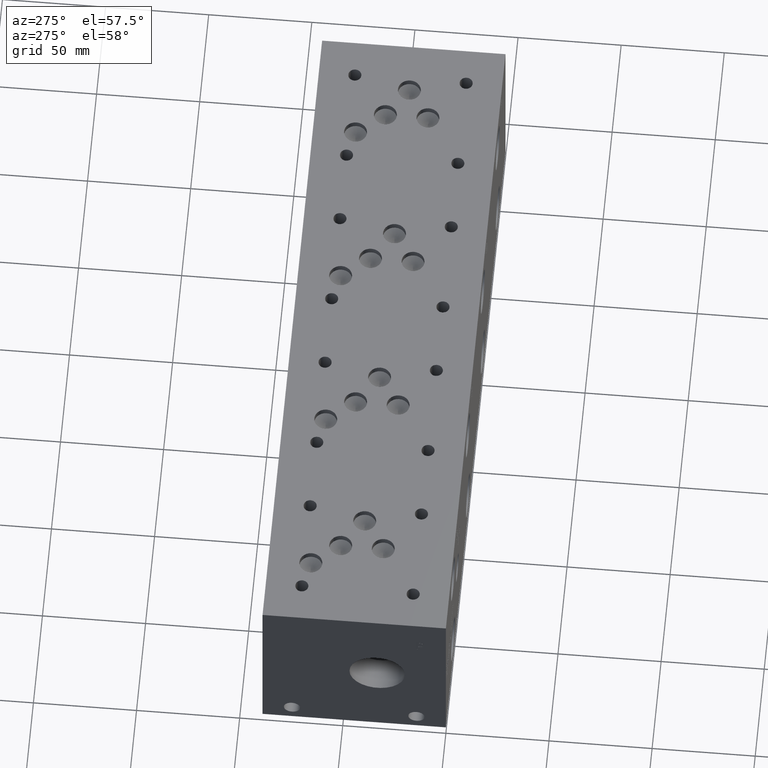
[diagram: clean part render]
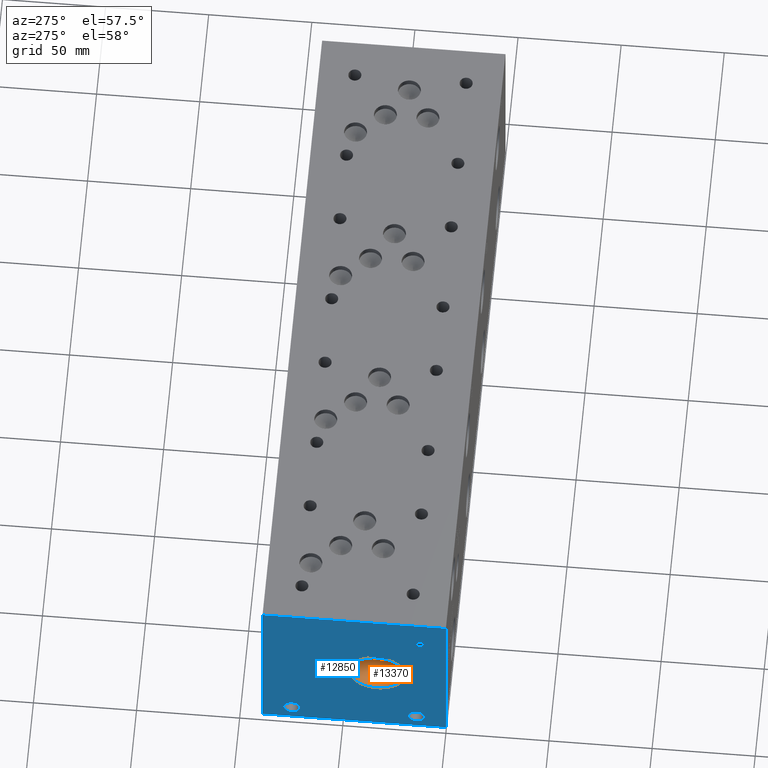
[diagram: same view with the hole feature highlighted: cylindrical wall and planar end face, labeled with their STEP entity ids]
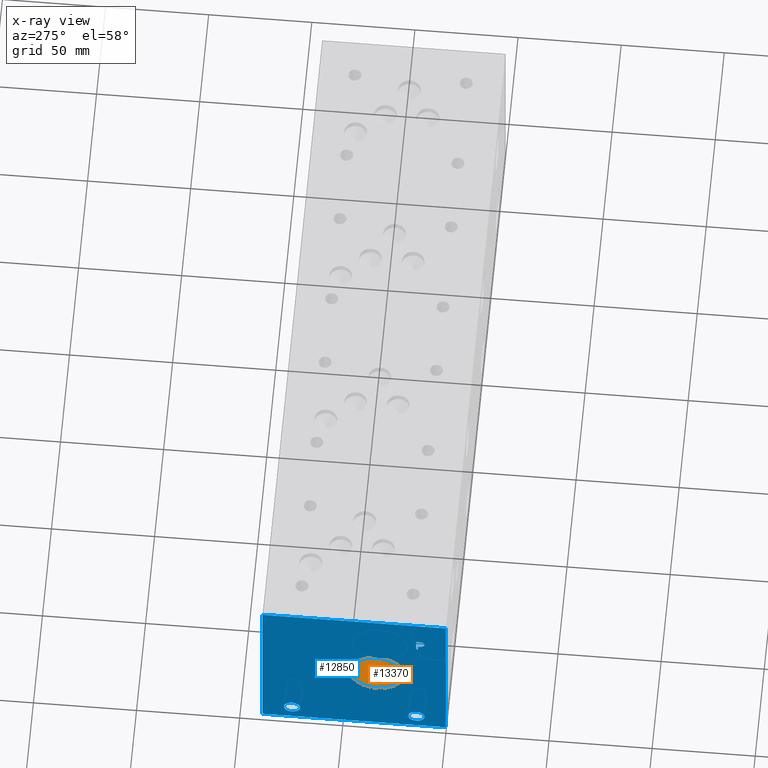
[diagram: x-ray of the same camera — body ghosted, the hole faces saturated]
A machine part, auxiliary view. The highlighted faces form one hole feature of diameter 26.924 mm: the cylindrical wall (entity #13370, orange) and its adjacent planar end face (entity #12850, blue) — they share a circular edge in the B-rep.
The next image is the same camera in x-ray (body ghosted, the hole faces saturated) — the bore reads through the body.
Wall:
#20=CYLINDRICAL_SURFACE('',#13954,13.462);
#143=CIRCLE('',#13555,13.462);
#144=CIRCLE('',#13556,13.462);
#186=CIRCLE('',#13951,13.462);
#187=CIRCLE('',#13952,13.462);
#1618=FACE_OUTER_BOUND('',#2379,.T.);
#2379=EDGE_LOOP('',(#11157,#11158,#11159,#11160,#11161,#11162));
#3699=LINE('',#22503,#4928);
#4928=VECTOR('',#16290,13.462);
#5104=VERTEX_POINT('',#17434);
#5105=VERTEX_POINT('',#17435);
#6065=VERTEX_POINT('',#22496);
#6066=VERTEX_POINT('',#22497);
#6424=EDGE_CURVE('',#5104,#5105,#143,.T.);
#6425=EDGE_CURVE('',#5105,#5104,#144,.T.);
#7848=EDGE_CURVE('',#6065,#6066,#186,.T.);
#7849=EDGE_CURVE('',#6066,#6065,#187,.T.);
#7851=EDGE_CURVE('',#5105,#6066,#3699,.T.);
#11157=ORIENTED_EDGE('',*,*,#6424,.F.);
#11158=ORIENTED_EDGE('',*,*,#6425,.F.);
#11159=ORIENTED_EDGE('',*,*,#7851,.T.);
#11160=ORIENTED_EDGE('',*,*,#7848,.F.);
#11161=ORIENTED_EDGE('',*,*,#7849,.F.);
#11162=ORIENTED_EDGE('',*,*,#7851,.F.);
#13370=ADVANCED_FACE('',(#1618),#20,.F.);
#13555=AXIS2_PLACEMENT_3D('',#17436,#14441,#14442);
#13556=AXIS2_PLACEMENT_3D('',#17437,#14443,#14444);
#13951=AXIS2_PLACEMENT_3D('',#22498,#16282,#16283);
#13952=AXIS2_PLACEMENT_3D('',#22499,#16284,#16285);
#13954=AXIS2_PLACEMENT_3D('',#22502,#16288,#16289);
#14441=DIRECTION('center_axis',(1.,0.,0.));
#14442=DIRECTION('ref_axis',(0.,1.,0.));
#14443=DIRECTION('center_axis',(1.,0.,0.));
#14444=DIRECTION('ref_axis',(0.,1.,0.));
#16282=DIRECTION('center_axis',(-1.,0.,0.));
#16283=DIRECTION('ref_axis',(0.,1.,0.));
#16284=DIRECTION('center_axis',(-1.,0.,0.));
#16285=DIRECTION('ref_axis',(0.,1.,0.));
#16288=DIRECTION('center_axis',(-1.,0.,0.));
#16289=DIRECTION('ref_axis',(0.,1.,0.));
#16290=DIRECTION('',(1.,0.,0.));
#17434=CARTESIAN_POINT('',(0.,46.7868,44.45));
#17435=CARTESIAN_POINT('',(1.11022302462516E-15,19.8628,44.45));
#17436=CARTESIAN_POINT('Origin',(0.,33.3248,44.45));
#17437=CARTESIAN_POINT('Origin',(0.,33.3248,44.45));
#22496=CARTESIAN_POINT('',(15.8496,46.7868,44.45));
#22497=CARTESIAN_POINT('',(15.8496,19.8628,44.45));
#22498=CARTESIAN_POINT('Origin',(15.8496,33.3248,44.45));
#22499=CARTESIAN_POINT('Origin',(15.8496,33.3248,44.45));
#22502=CARTESIAN_POINT('Origin',(7.9248,33.3248,44.45));
#22503=CARTESIAN_POINT('',(7.9248,19.8628,44.45));
End face:
#139=CIRCLE('',#13551,3.9624);
#140=CIRCLE('',#13552,3.9624);
#141=CIRCLE('',#13553,3.9624);
#142=CIRCLE('',#13554,3.9624);
#143=CIRCLE('',#13555,13.462);
#144=CIRCLE('',#13556,13.462);
#421=FACE_BOUND('',#1794,.T.);
#422=FACE_BOUND('',#1795,.T.);
#423=FACE_BOUND('',#1796,.T.);
#424=FACE_BOUND('',#1797,.T.);
#558=B_SPLINE_CURVE_WITH_KNOTS('',2,(#17320,#17321,#17322,#17323),
 .UNSPECIFIED.,.F.,.F.,(3,1,3),(0.,1.,2.),.UNSPECIFIED.);
#560=B_SPLINE_CURVE_WITH_KNOTS('',2,(#17341,#17342,#17343,#17344),
 .UNSPECIFIED.,.F.,.F.,(3,1,3),(0.,1.,2.),.UNSPECIFIED.);
#562=B_SPLINE_CURVE_WITH_KNOTS('',2,(#17390,#17391,#17392,#17393),
 .UNSPECIFIED.,.F.,.F.,(3,1,3),(0.,1.,2.),.UNSPECIFIED.);
#564=B_SPLINE_CURVE_WITH_KNOTS('',2,(#17408,#17409,#17410,#17411),
 .UNSPECIFIED.,.F.,.F.,(3,1,3),(0.,1.,2.),.UNSPECIFIED.);
#1098=FACE_OUTER_BOUND('',#1793,.T.);
#1793=EDGE_LOOP('',(#8322,#8323,#8324,#8325));
#1794=EDGE_LOOP('',(#8326,#8327));
#1795=EDGE_LOOP('',(#8328,#8329));
#1796=EDGE_LOOP('',(#8330,#8331));
#1797=EDGE_LOOP('',(#8332,#8333,#8334,#8335,#8336,#8337,#8338,#8339,#8340));
#2630=LINE('',#17353,#3859);
#2633=LINE('',#17359,#3862);
#2636=LINE('',#17365,#3865);
#2639=LINE('',#17371,#3868);
#2642=LINE('',#17377,#3871);
#2646=LINE('',#17420,#3875);
#2647=LINE('',#17422,#3876);
#2648=LINE('',#17424,#3877);
#2649=LINE('',#17425,#3878);
#3859=VECTOR('',#14401,10.);
#3862=VECTOR('',#14406,10.);
#3865=VECTOR('',#14411,10.);
#3868=VECTOR('',#14416,10.);
#3871=VECTOR('',#14421,10.);
#3875=VECTOR('',#14429,10.);
#3876=VECTOR('',#14430,10.);
#3877=VECTOR('',#14431,10.);
#3878=VECTOR('',#14432,10.);
#5078=VERTEX_POINT('',#17318);
#5079=VERTEX_POINT('',#17319);
#5082=VERTEX_POINT('',#17340);
#5084=VERTEX_POINT('',#17352);
#5086=VERTEX_POINT('',#17358);
#5088=VERTEX_POINT('',#17364);
#5090=VERTEX_POINT('',#17370);
#5092=VERTEX_POINT('',#17376);
#5094=VERTEX_POINT('',#17389);
#5096=VERTEX_POINT('',#17418);
#5097=VERTEX_POINT('',#17419);
#5098=VERTEX_POINT('',#17421);
#5099=VERTEX_POINT('',#17423);
#5100=VERTEX_POINT('',#17426);
#5101=VERTEX_POINT('',#17427);
#5102=VERTEX_POINT('',#17430);
#5103=VERTEX_POINT('',#17431);
#5104=VERTEX_POINT('',#17434);
#5105=VERTEX_POINT('',#17435);
#6389=EDGE_CURVE('',#5078,#5079,#558,.T.);
#6393=EDGE_CURVE('',#5082,#5078,#560,.T.);
#6396=EDGE_CURVE('',#5084,#5082,#2630,.T.);
#6399=EDGE_CURVE('',#5086,#5084,#2633,.T.);
#6402=EDGE_CURVE('',#5088,#5086,#2636,.T.);
#6405=EDGE_CURVE('',#5090,#5088,#2639,.T.);
#6408=EDGE_CURVE('',#5092,#5090,#2642,.T.);
#6411=EDGE_CURVE('',#5094,#5092,#562,.T.);
#6414=EDGE_CURVE('',#5079,#5094,#564,.T.);
#6416=EDGE_CURVE('',#5096,#5097,#2646,.T.);
#6417=EDGE_CURVE('',#5097,#5098,#2647,.T.);
#6418=EDGE_CURVE('',#5099,#5098,#2648,.T.);
#6419=EDGE_CURVE('',#5096,#5099,#2649,.T.);
#6420=EDGE_CURVE('',#5100,#5101,#139,.T.);
#6421=EDGE_CURVE('',#5101,#5100,#140,.T.);
#6422=EDGE_CURVE('',#5102,#5103,#141,.T.);
#6423=EDGE_CURVE('',#5103,#5102,#142,.T.);
#6424=EDGE_CURVE('',#5104,#5105,#143,.T.);
#6425=EDGE_CURVE('',#5105,#5104,#144,.T.);
#8322=ORIENTED_EDGE('',*,*,#6416,.T.);
#8323=ORIENTED_EDGE('',*,*,#6417,.T.);
#8324=ORIENTED_EDGE('',*,*,#6418,.F.);
#8325=ORIENTED_EDGE('',*,*,#6419,.F.);
#8326=ORIENTED_EDGE('',*,*,#6420,.T.);
#8327=ORIENTED_EDGE('',*,*,#6421,.T.);
#8328=ORIENTED_EDGE('',*,*,#6422,.T.);
#8329=ORIENTED_EDGE('',*,*,#6423,.T.);
#8330=ORIENTED_EDGE('',*,*,#6424,.T.);
#8331=ORIENTED_EDGE('',*,*,#6425,.T.);
#8332=ORIENTED_EDGE('',*,*,#6389,.T.);
#8333=ORIENTED_EDGE('',*,*,#6414,.T.);
#8334=ORIENTED_EDGE('',*,*,#6411,.T.);
#8335=ORIENTED_EDGE('',*,*,#6408,.T.);
#8336=ORIENTED_EDGE('',*,*,#6405,.T.);
#8337=ORIENTED_EDGE('',*,*,#6402,.T.);
#8338=ORIENTED_EDGE('',*,*,#6399,.T.);
#8339=ORIENTED_EDGE('',*,*,#6396,.T.);
#8340=ORIENTED_EDGE('',*,*,#6393,.T.);
#11936=PLANE('',#13550);
#12850=ADVANCED_FACE('',(#1098,#421,#422,#423,#424),#11936,.T.);
#13550=AXIS2_PLACEMENT_3D('',#17417,#14427,#14428);
#13551=AXIS2_PLACEMENT_3D('',#17428,#14433,#14434);
#13552=AXIS2_PLACEMENT_3D('',#17429,#14435,#14436);
#13553=AXIS2_PLACEMENT_3D('',#17432,#14437,#14438);
#13554=AXIS2_PLACEMENT_3D('',#17433,#14439,#14440);
#13555=AXIS2_PLACEMENT_3D('',#17436,#14441,#14442);
#13556=AXIS2_PLACEMENT_3D('',#17437,#14443,#14444);
#14401=DIRECTION('',(0.,-1.,-5.56775304226775E-15));
#14406=DIRECTION('',(0.,-3.14708893596576E-15,1.));
#14411=DIRECTION('',(0.,1.,0.));
#14416=DIRECTION('',(0.,2.81413604853751E-15,-1.));
#14421=DIRECTION('',(0.,1.,0.));
#14427=DIRECTION('center_axis',(-1.,0.,0.));
#14428=DIRECTION('ref_axis',(0.,-1.,0.));
#14429=DIRECTION('',(0.,-1.,0.));
#14430=DIRECTION('',(0.,0.,1.));
#14431=DIRECTION('',(0.,-1.,0.));
#14432=DIRECTION('',(0.,0.,1.));
#14433=DIRECTION('center_axis',(1.,0.,0.));
#14434=DIRECTION('ref_axis',(0.,1.,0.));
#14435=DIRECTION('center_axis',(1.,0.,0.));
#14436=DIRECTION('ref_axis',(0.,1.,0.));
#14437=DIRECTION('center_axis',(1.,0.,0.));
#14438=DIRECTION('ref_axis',(0.,1.,0.));
#14439=DIRECTION('center_axis',(1.,0.,0.));
#14440=DIRECTION('ref_axis',(0.,1.,0.));
#14441=DIRECTION('center_axis',(1.,0.,0.));
#14442=DIRECTION('ref_axis',(0.,1.,0.));
#14443=DIRECTION('center_axis',(1.,0.,0.));
#14444=DIRECTION('ref_axis',(0.,1.,0.));
#17318=CARTESIAN_POINT('',(0.,11.1806827976406,74.2162681439707));
#17319=CARTESIAN_POINT('',(0.,10.424240345468,72.6982373726039));
#17320=CARTESIAN_POINT('Ctrl Pts',(0.,11.1806827976406,74.2162681439707));
#17321=CARTESIAN_POINT('Ctrl Pts',(0.,10.8256179731514,73.9744123939563));
#17322=CARTESIAN_POINT('Ctrl Pts',(0.,10.424240345468,73.2282616758269));
#17323=CARTESIAN_POINT('Ctrl Pts',(0.,10.424240345468,72.6982373726039));
#17340=CARTESIAN_POINT('',(0.,12.8427978456117,74.6124999046325));
#17341=CARTESIAN_POINT('Ctrl Pts',(0.,12.8427978456117,74.6124999046325));
#17342=CARTESIAN_POINT('Ctrl Pts',(0.,12.2767524732376,74.6124999046325));
#17343=CARTESIAN_POINT('Ctrl Pts',(0.,11.4842889519139,74.4272486918556));
#17344=CARTESIAN_POINT('Ctrl Pts',(0.,11.1806827976406,74.2162681439707));
#17352=CARTESIAN_POINT('',(0.,14.4380166223022,74.6124999046326));
#17353=CARTESIAN_POINT('',(0.,51.6690083111509,74.6124999046328));
#17358=CARTESIAN_POINT('',(0.,14.4380166223022,68.2625));
#17359=CARTESIAN_POINT('',(0.,14.4380166223023,34.1312499999999));
#17364=CARTESIAN_POINT('',(0.,13.5940944307627,68.2625));
#17365=CARTESIAN_POINT('',(0.,51.2470472153814,68.2625));
#17370=CARTESIAN_POINT('',(0.,13.5940944307627,70.6295988299278));
#17371=CARTESIAN_POINT('',(0.,13.5940944307628,35.3147994149638));
#17376=CARTESIAN_POINT('',(0.,12.8788189147628,70.6295988299278));
#17377=CARTESIAN_POINT('',(0.,50.8894094573814,70.6295988299278));
#17389=CARTESIAN_POINT('',(0.,10.9799939837989,71.2882698086904));
#17390=CARTESIAN_POINT('Ctrl Pts',(0.,10.9799939837989,71.2882698086904));
#17391=CARTESIAN_POINT('Ctrl Pts',(0.,11.3093294731802,70.9640801863307));
#17392=CARTESIAN_POINT('Ctrl Pts',(0.,12.1995644679139,70.6295988299278));
#17393=CARTESIAN_POINT('Ctrl Pts',(0.,12.8788189147628,70.6295988299278));
#17408=CARTESIAN_POINT('Ctrl Pts',(0.,10.424240345468,72.6982373726039));
#17409=CARTESIAN_POINT('Ctrl Pts',(0.,10.424240345468,72.2865680108773));
#17410=CARTESIAN_POINT('Ctrl Pts',(0.,10.7175547656982,71.5455631597695));
#17411=CARTESIAN_POINT('Ctrl Pts',(0.,10.9799939837989,71.2882698086904));
#17417=CARTESIAN_POINT('Origin',(0.,88.9,0.));
#17418=CARTESIAN_POINT('',(0.,88.9,0.));
#17419=CARTESIAN_POINT('',(0.,0.,0.));
#17420=CARTESIAN_POINT('',(0.,88.9,0.));
#17421=CARTESIAN_POINT('',(0.,0.,88.9));
#17422=CARTESIAN_POINT('',(0.,0.,0.));
#17423=CARTESIAN_POINT('',(0.,88.9,88.9));
#17424=CARTESIAN_POINT('',(0.,88.9,88.9));
#17425=CARTESIAN_POINT('',(0.,88.9,0.));
#17426=CARTESIAN_POINT('',(0.,18.2372,7.92479999999999));
#17427=CARTESIAN_POINT('',(0.,10.3124,7.92479999999999));
#17428=CARTESIAN_POINT('Origin',(0.,14.2748,7.92479999999999));
#17429=CARTESIAN_POINT('Origin',(0.,14.2748,7.92479999999999));
#17430=CARTESIAN_POINT('',(0.,78.5876,7.92479999999999));
#17431=CARTESIAN_POINT('',(0.,70.6628,7.92479999999999));
#17432=CARTESIAN_POINT('Origin',(0.,74.6252,7.92479999999999));
#17433=CARTESIAN_POINT('Origin',(0.,74.6252,7.92479999999999));
#17434=CARTESIAN_POINT('',(0.,46.7868,44.45));
#17435=CARTESIAN_POINT('',(1.11022302462516E-15,19.8628,44.45));
#17436=CARTESIAN_POINT('Origin',(0.,33.3248,44.45));
#17437=CARTESIAN_POINT('Origin',(0.,33.3248,44.45));